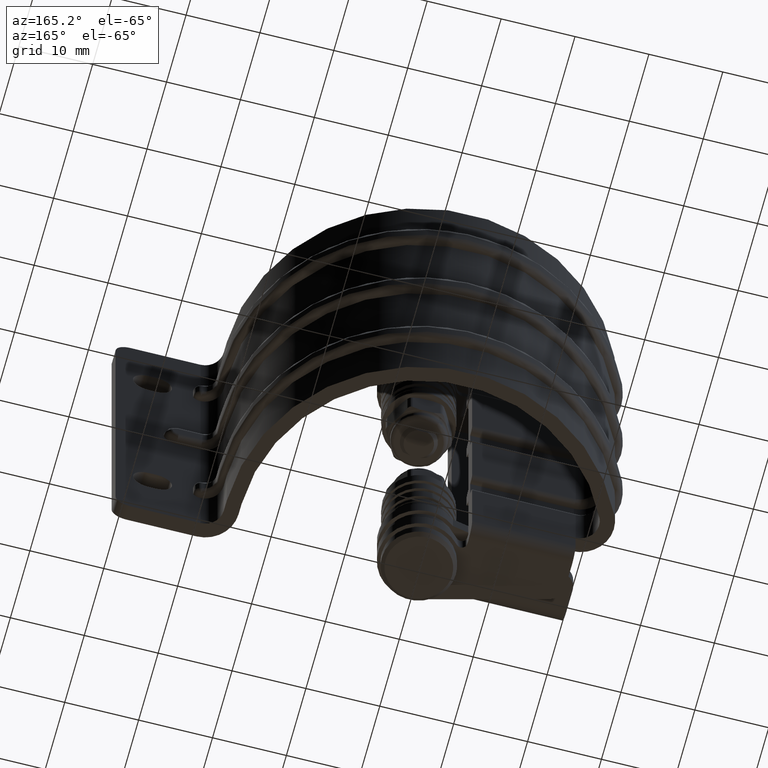
[diagram: clean part render]
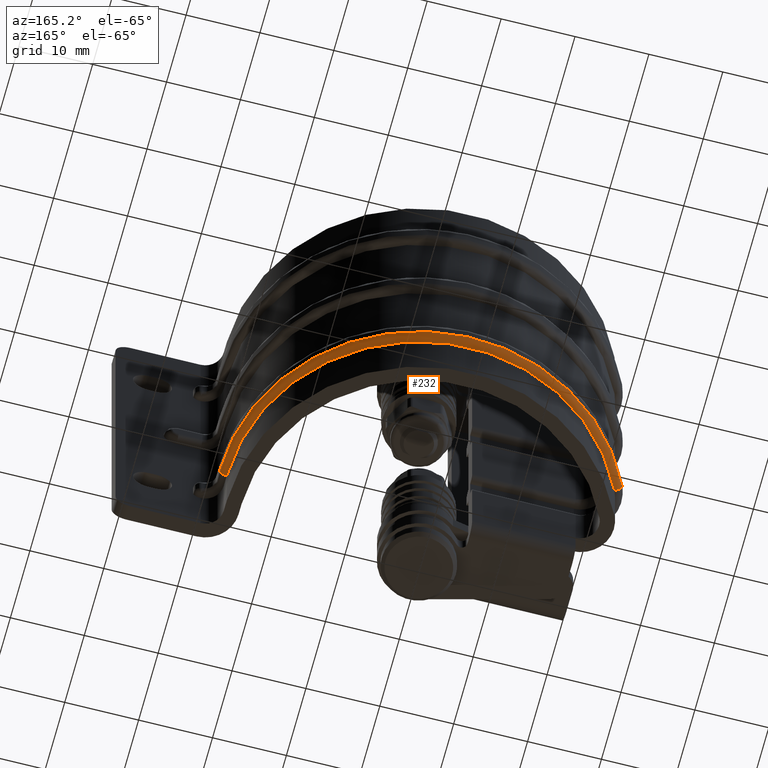
[diagram: same view with one face highlighted and labeled with its STEP entity id]
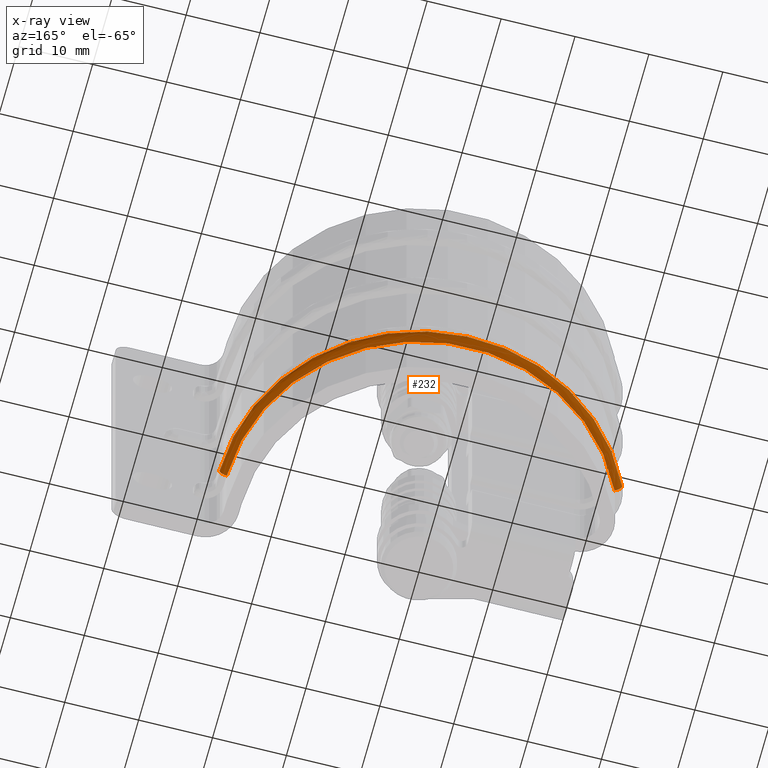
[diagram: x-ray of the same camera — body ghosted, the highlighted face saturated]
A machine part, auxiliary view. The second image highlights one B-rep face of the part: STEP entity #232.
The next image is the same camera in x-ray: the body ghosted, the highlighted face saturated — about 0% of this face is hidden behind the body in this view.
In plain terms, the highlighted face is a freeform B-spline surface patch.
Its self-contained STEP definition (entity closure, byte-faithful):
#232=ADVANCED_FACE('',(#1775),#1774,.T.);
#1774=( BOUNDED_SURFACE() B_SPLINE_SURFACE( 2,2,((#6660,#6661,#6662,#6663,#6664),(#6665,#6666,#6667,#6668,#6669),(#6670,#6671,#6672,#6673,#6674),(#6675,#6676,#6677,#6678,#6679),(#6680,#6681,#6682,#6683,#6684),(#6685,#6686,#6687,#6688,#6689),(#6690,#6691,#6692,#6693,#6694)), .UNSPECIFIED.,.T.,.F.,.F.) B_SPLINE_SURFACE_WITH_KNOTS((3,2,2,3),(3,2,3),(0.00000000000E+00,3.33333333333E-01,6.66666666667E-01,1.00000000000E+00),(0.00000000000E+00,5.00000000000E-01,1.00000000000E+00), .UNSPECIFIED. ) GEOMETRIC_REPRESENTATION_ITEM() RATIONAL_B_SPLINE_SURFACE(((1.00000000000E+00,7.07106781187E-01,1.00000000000E+00,7.07106781187E-01,1.00000000000E+00),(5.00000000000E-01,3.53553390593E-01,5.00000000000E-01,3.53553390593E-01,5.00000000000E-01),(1.00000000000E+00,7.07106781187E-01,1.00000000000E+00,7.07106781187E-01,1.00000000000E+00),(5.00000000000E-01,3.53553390593E-01,5.00000000000E-01,3.53553390593E-01,5.00000000000E-01),(1.00000000000E+00,7.07106781187E-01,1.00000000000E+00,7.07106781187E-01,1.00000000000E+00),(5.00000000000E-01,3.53553390593E-01,5.00000000000E-01,3.53553390593E-01,5.00000000000E-01),(1.00000000000E+00,7.07106781187E-01,1.00000000000E+00,7.07106781187E-01,1.00000000000E+00))) REPRESENTATION_ITEM('') SURFACE() );
#1775=FACE_OUTER_BOUND('',#6695,.T.);
#6660=CARTESIAN_POINT('',(1.57499999990E+01,3.03729289894E-13,-2.50000000015E+01));
#6661=CARTESIAN_POINT('',(1.67499999990E+01,3.03729289894E-13,-2.50000000015E+01));
#6662=CARTESIAN_POINT('',(1.67499999990E+01,3.03606829258E-13,-2.60000000015E+01));
#6663=CARTESIAN_POINT('',(1.67499999990E+01,3.03484368623E-13,-2.70000000015E+01));
#6664=CARTESIAN_POINT('',(1.57499999990E+01,3.03484368623E-13,-2.70000000015E+01));
#6665=CARTESIAN_POINT('',(1.57499999990E+01,-4.33012701899E+01,-2.50000000015E+01));
#6666=CARTESIAN_POINT('',(1.67499999990E+01,-4.33012701899E+01,-2.50000000015E+01));
#6667=CARTESIAN_POINT('',(1.67499999990E+01,-4.50333209975E+01,-2.60000000015E+01));
#6668=CARTESIAN_POINT('',(1.67499999990E+01,-4.67653718051E+01,-2.70000000015E+01));
#6669=CARTESIAN_POINT('',(1.57499999990E+01,-4.67653718051E+01,-2.70000000015E+01));
#6670=CARTESIAN_POINT('',(1.57499999990E+01,-2.16506350950E+01,1.24999999991E+01));
#6671=CARTESIAN_POINT('',(1.67499999990E+01,-2.16506350950E+01,1.24999999991E+01));
#6672=CARTESIAN_POINT('',(1.67499999990E+01,-2.25166604987E+01,1.29999999991E+01));
#6673=CARTESIAN_POINT('',(1.67499999990E+01,-2.33826859025E+01,1.34999999991E+01));
#6674=CARTESIAN_POINT('',(1.57499999990E+01,-2.33826859025E+01,1.34999999991E+01));
#6675=CARTESIAN_POINT('',(1.57499999990E+01,3.06790805778E-13,4.99999999997E+01));
#6676=CARTESIAN_POINT('',(1.67499999990E+01,3.06790805778E-13,4.99999999997E+01));
#6677=CARTESIAN_POINT('',(1.67499999990E+01,3.06790805778E-13,5.19999999997E+01));
#6678=CARTESIAN_POINT('',(1.67499999990E+01,3.06790805778E-13,5.39999999997E+01));
#6679=CARTESIAN_POINT('',(1.57499999990E+01,3.06790805778E-13,5.39999999997E+01));
#6680=CARTESIAN_POINT('',(1.57499999990E+01,2.16506350950E+01,1.24999999991E+01));
#6681=CARTESIAN_POINT('',(1.67499999990E+01,2.16506350950E+01,1.24999999991E+01));
#6682=CARTESIAN_POINT('',(1.67499999990E+01,2.25166604987E+01,1.29999999991E+01));
#6683=CARTESIAN_POINT('',(1.67499999990E+01,2.33826859025E+01,1.34999999991E+01));
#6684=CARTESIAN_POINT('',(1.57499999990E+01,2.33826859025E+01,1.34999999991E+01));
#6685=CARTESIAN_POINT('',(1.57499999990E+01,4.33012701899E+01,-2.50000000015E+01));
#6686=CARTESIAN_POINT('',(1.67499999990E+01,4.33012701899E+01,-2.50000000015E+01));
#6687=CARTESIAN_POINT('',(1.67499999990E+01,4.50333209975E+01,-2.60000000015E+01));
#6688=CARTESIAN_POINT('',(1.67499999990E+01,4.67653718051E+01,-2.70000000015E+01));
#6689=CARTESIAN_POINT('',(1.57499999990E+01,4.67653718051E+01,-2.70000000015E+01));
#6690=CARTESIAN_POINT('',(1.57499999990E+01,3.09852321663E-13,-2.50000000015E+01));
#6691=CARTESIAN_POINT('',(1.67499999990E+01,3.09852321663E-13,-2.50000000015E+01));
#6692=CARTESIAN_POINT('',(1.67499999990E+01,3.09974782298E-13,-2.60000000015E+01));
#6693=CARTESIAN_POINT('',(1.67499999990E+01,3.10097242933E-13,-2.70000000015E+01));
#6694=CARTESIAN_POINT('',(1.57499999990E+01,3.10097242933E-13,-2.70000000015E+01));
#6695=EDGE_LOOP('',(#10109,#10110,#10111,#10112));
#10109=ORIENTED_EDGE('',*,*,#12078,.T.);
#10110=ORIENTED_EDGE('',*,*,#12079,.F.);
#10111=ORIENTED_EDGE('',*,*,#12075,.F.);
#10112=ORIENTED_EDGE('',*,*,#12080,.T.);
#12075=EDGE_CURVE('',#15076,#15077,#15078,.T.);
#12078=EDGE_CURVE('',#15096,#15097,#15098,.T.);
#12079=EDGE_CURVE('',#15077,#15097,#15104,.T.);
#12080=EDGE_CURVE('',#15076,#15096,#15110,.T.);
#15076=VERTEX_POINT('',#21462);
#15077=VERTEX_POINT('',#21463);
#15078=CIRCLE('',#21467,1.00000000000E+00);
#15096=VERTEX_POINT('',#21474);
#15097=VERTEX_POINT('',#21475);
#15098=CIRCLE('',#21479,1.00000000000E+00);
#15104=CIRCLE('',#21483,2.70000000004E+01);
#15110=CIRCLE('',#21487,2.59999999989E+01);
#21462=CARTESIAN_POINT('',(1.67499999990E+01,-2.53968668318E-09,-2.59999992166E+01));
#21463=CARTESIAN_POINT('',(1.57499999990E+01,3.11750625315E-13,-2.70000000015E+01));
#21464=CARTESIAN_POINT('',(1.57499999990E+01,3.11566928295E-13,-2.60000000015E+01));
#21465=DIRECTION('',(0.00000000000E+00,1.00000000000E+00,1.83697019872E-16));
#21466=DIRECTION('',(-0.00000000000E+00,1.83697019872E-16,-1.00000000000E+00));
#21467=AXIS2_PLACEMENT_3D('',#21464,#21465,#21466);
#21474=CARTESIAN_POINT('',(1.67499999990E+01,-1.08837209322E+01,2.36123835224E+01));
#21475=CARTESIAN_POINT('',(1.57499999990E+01,-1.13023255815E+01,2.45205513073E+01));
#21476=CARTESIAN_POINT('',(1.57499999990E+01,-1.08837209304E+01,2.36123827404E+01));
#21477=DIRECTION('',(0.00000000000E+00,-9.08168566966E-01,-4.18604651162E-01));
#21478=DIRECTION('',(-0.00000000000E+00,-4.18604651162E-01,9.08168566966E-01));
#21479=AXIS2_PLACEMENT_3D('',#21476,#21477,#21478);
#21480=CARTESIAN_POINT('',(1.57499999990E+01,3.06790805778E-13,-1.11199582875E-09));
#21481=DIRECTION('',(-1.00000000000E+00,0.00000000000E+00,0.00000000000E+00));
#21482=DIRECTION('',(-0.00000000000E+00,-0.00000000000E+00,-1.00000000000E+00));
#21483=AXIS2_PLACEMENT_3D('',#21480,#21481,#21482);
#21484=CARTESIAN_POINT('',(1.67499999990E+01,-2.53969145930E-09,7.82319993675E-07));
#21485=DIRECTION('',(-1.00000000000E+00,0.00000000000E+00,0.00000000000E+00));
#21486=DIRECTION('',(-0.00000000000E+00,-0.00000000000E+00,-1.00000000000E+00));
#21487=AXIS2_PLACEMENT_3D('',#21484,#21485,#21486);